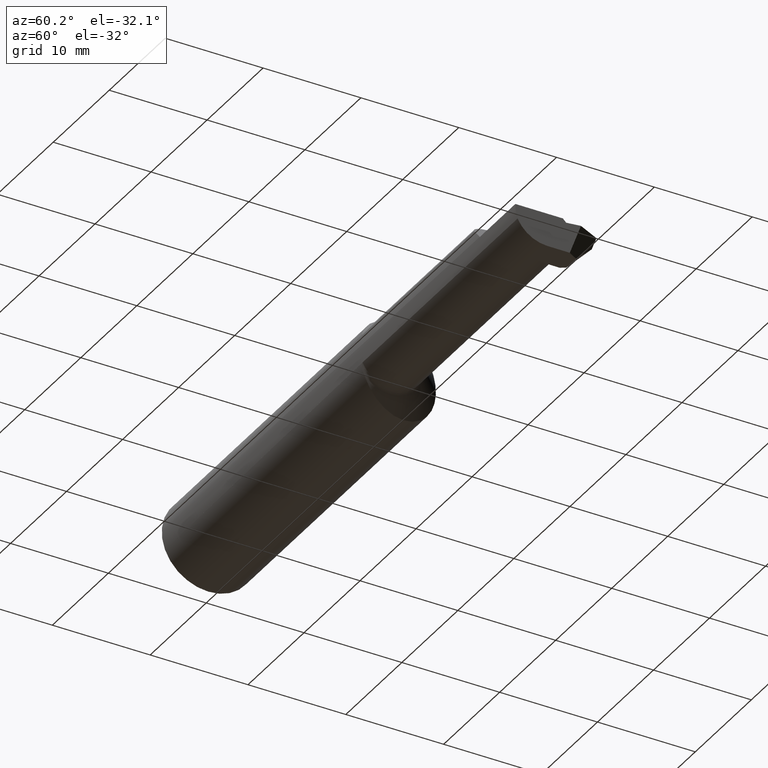
[diagram: clean part render]
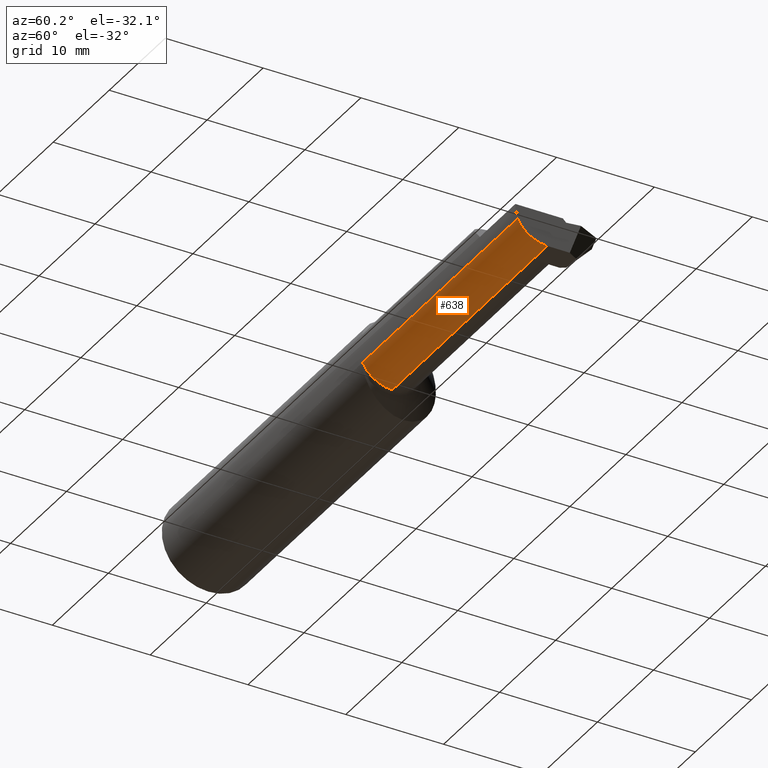
[diagram: same view with one face highlighted and labeled with its STEP entity id]
A machine part, auxiliary view. The second image highlights one B-rep face of the part: STEP entity #638.
In plain terms, the highlighted cylindrical surface (partial cylindrical patch) has radius 3.3782 mm, axis along (-1, -0, -0).
Its self-contained STEP definition (entity closure, byte-faithful):
#6 = LINE ( 'NONE', #684, #526 ) ;
#8 = EDGE_CURVE ( 'NONE', #360, #351, #466, .T. ) ;
#19 = CARTESIAN_POINT ( 'NONE',  ( 1.889999999999999680, -0.1783697086546703892, -0.05730854678359931925 ) ) ;
#55 = DIRECTION ( 'NONE',  ( -1.000000000000000000, -0.000000000000000000, -0.000000000000000000 ) ) ;
#73 = LINE ( 'NONE', #489, #120 ) ;
#89 = ORIENTED_EDGE ( 'NONE', *, *, #675, .T. ) ;
#106 = DIRECTION ( 'NONE',  ( 0.000000000000000000, 1.797268416884383603E-15, 1.000000000000000000 ) ) ;
#113 = EDGE_CURVE ( 'NONE', #167, #1069, #842, .T. ) ;
#120 = VECTOR ( 'NONE', #55, 39.37007874015748143 ) ;
#167 = VERTEX_POINT ( 'NONE', #994 ) ;
#168 = DIRECTION ( 'NONE',  ( 0.000000000000000000, 0.000000000000000000, 1.000000000000000000 ) ) ;
#180 = CYLINDRICAL_SURFACE ( 'NONE', #486, 0.1330000000000000071 ) ;
#186 = DIRECTION ( 'NONE',  ( -1.000000000000000000, -0.000000000000000000, -0.000000000000000000 ) ) ;
#251 = CARTESIAN_POINT ( 'NONE',  ( 1.410355339059326862, -0.05834999999999980480, -0.1330000000000000071 ) ) ;
#255 = CARTESIAN_POINT ( 'NONE',  ( 2.500000000000000000, -0.05834999999999981868, 0.000000000000000000 ) ) ;
#269 = CARTESIAN_POINT ( 'NONE',  ( 2.500000000000000000, -0.1783697086546704169, -0.05730854678359924986 ) ) ;
#341 = CARTESIAN_POINT ( 'NONE',  ( 2.500000000000000000, -0.05834999999999983950, -0.1329999999999999793 ) ) ;
#351 = VERTEX_POINT ( 'NONE', #341 ) ;
#352 = DIRECTION ( 'NONE',  ( -1.000000000000000000, -0.000000000000000000, -0.000000000000000000 ) ) ;
#360 = VERTEX_POINT ( 'NONE', #269 ) ;
#451 = AXIS2_PLACEMENT_3D ( 'NONE', #801, #710, #106 ) ;
#453 = EDGE_LOOP ( 'NONE', ( #932, #892, #997, #89, #562 ) ) ;
#466 = CIRCLE ( 'NONE', #1082, 0.1329999999999999793 ) ;
#486 = AXIS2_PLACEMENT_3D ( 'NONE', #690, #352, #168 ) ;
#489 = CARTESIAN_POINT ( 'NONE',  ( 1.399999999999999911, -0.05834999999999980480, -0.1330000000000000071 ) ) ;
#517 = DIRECTION ( 'NONE',  ( 0.000000000000000000, 0.000000000000000000, 1.000000000000000000 ) ) ;
#526 = VECTOR ( 'NONE', #935, 39.37007874015748143 ) ;
#562 = ORIENTED_EDGE ( 'NONE', *, *, #113, .T. ) ;
#599 = EDGE_CURVE ( 'NONE', #754, #1069, #73, .T. ) ;
#614 = VECTOR ( 'NONE', #186, 39.37007874015748143 ) ;
#638 = ADVANCED_FACE ( 'NONE', ( #1004 ), #180, .T. ) ;
#675 = EDGE_CURVE ( 'NONE', #360, #167, #921, .T. ) ;
#684 = CARTESIAN_POINT ( 'NONE',  ( 2.500000000000000000, -0.05834999999999983950, -0.1329999999999999793 ) ) ;
#690 = CARTESIAN_POINT ( 'NONE',  ( 1.399999999999999911, -0.05834999999999981868, 0.000000000000000000 ) ) ;
#710 = DIRECTION ( 'NONE',  ( 1.000000000000000000, 0.000000000000000000, 0.000000000000000000 ) ) ;
#733 = EDGE_CURVE ( 'NONE', #351, #754, #6, .T. ) ;
#754 = VERTEX_POINT ( 'NONE', #774 ) ;
#774 = CARTESIAN_POINT ( 'NONE',  ( 2.398797270268487658, -0.05834999999999983950, -0.1329999999999999793 ) ) ;
#801 = CARTESIAN_POINT ( 'NONE',  ( 1.410355339059326862, -0.05834999999999981868, 0.000000000000000000 ) ) ;
#842 = CIRCLE ( 'NONE', #451, 0.1330000000000000071 ) ;
#850 = DIRECTION ( 'NONE',  ( 1.000000000000000000, -0.000000000000000000, -0.000000000000000000 ) ) ;
#892 = ORIENTED_EDGE ( 'NONE', *, *, #733, .F. ) ;
#921 = LINE ( 'NONE', #19, #614 ) ;
#932 = ORIENTED_EDGE ( 'NONE', *, *, #599, .F. ) ;
#935 = DIRECTION ( 'NONE',  ( -1.000000000000000000, -0.000000000000000000, -0.000000000000000000 ) ) ;
#994 = CARTESIAN_POINT ( 'NONE',  ( 1.410355339059326862, -0.1783697086546703892, -0.05730854678359931925 ) ) ;
#997 = ORIENTED_EDGE ( 'NONE', *, *, #8, .F. ) ;
#1004 = FACE_OUTER_BOUND ( 'NONE', #453, .T. ) ;
#1069 = VERTEX_POINT ( 'NONE', #251 ) ;
#1082 = AXIS2_PLACEMENT_3D ( 'NONE', #255, #850, #517 ) ;